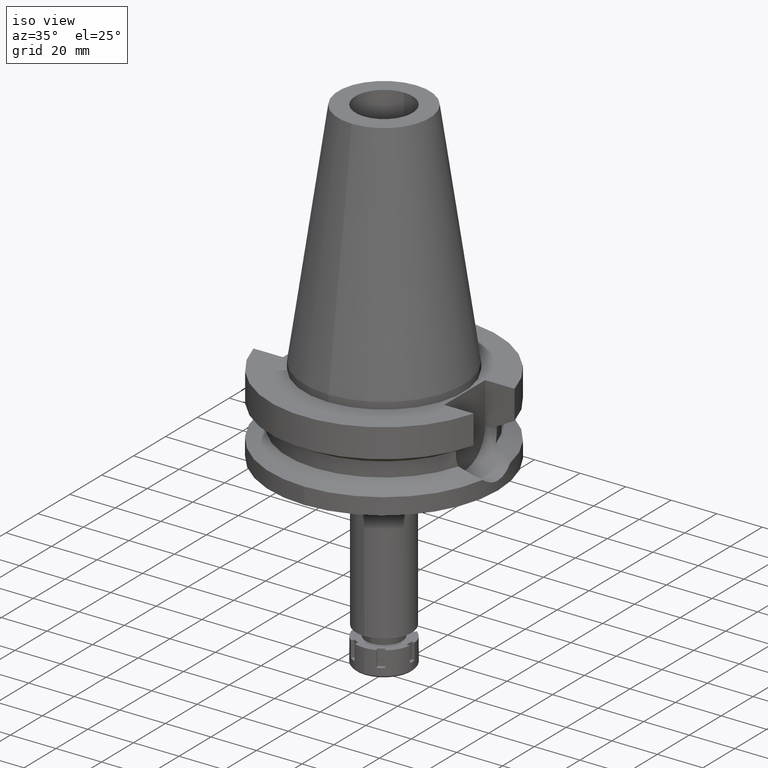
[diagram: clean part render]
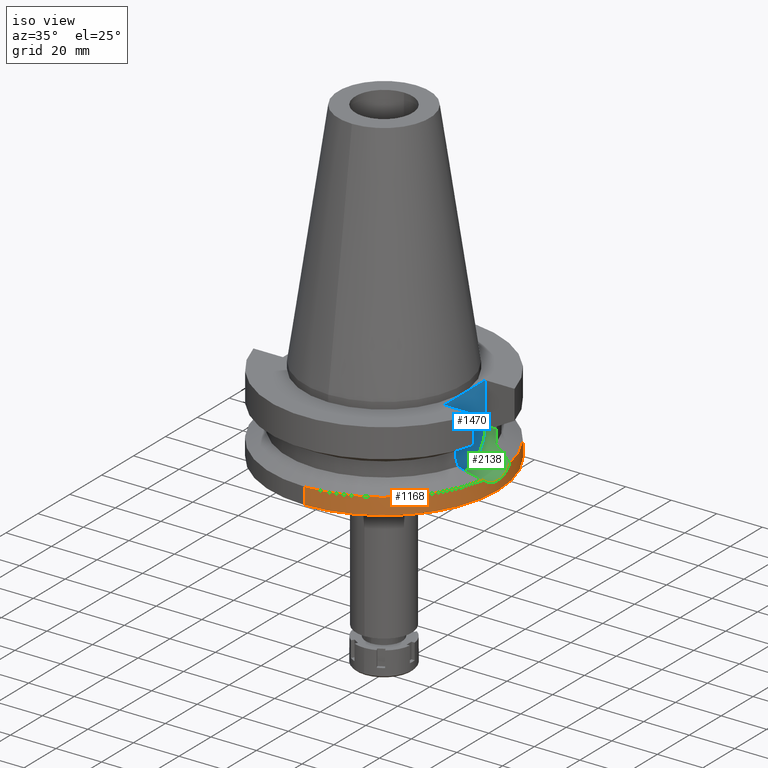
[diagram: same view with three faces highlighted in distinct colors, each labeled with its STEP entity id]
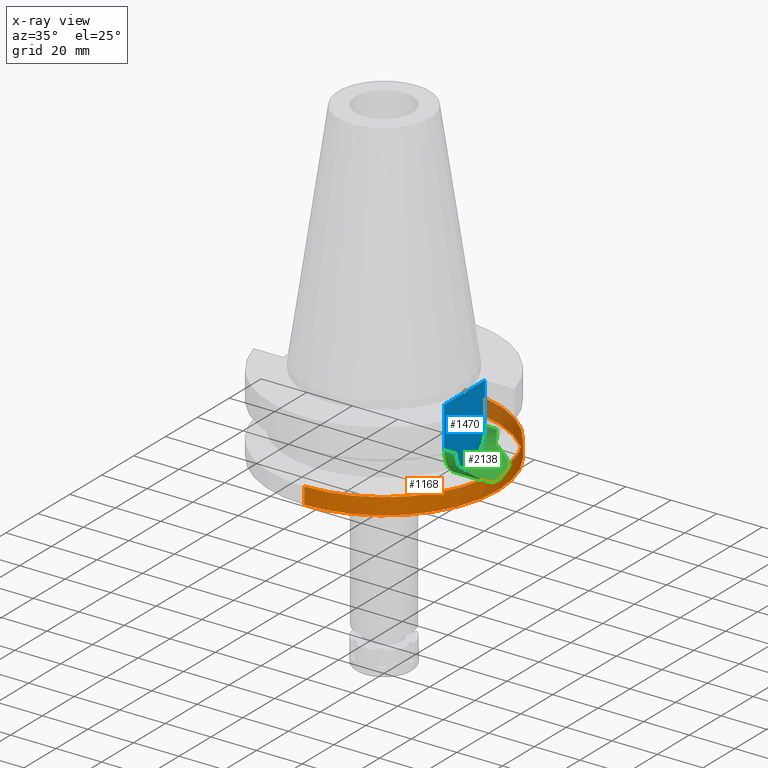
[diagram: x-ray of the same camera — body ghosted, the three highlighted faces saturated]
A machine part, iso view with three faces highlighted in distinct colors.
The next image is the same camera in x-ray (body ghosted, the three faces saturated) — at least one of them is partly hidden behind the body in this view.
Their STEP definitions:

[orange] entity #1168 — the highlighted cylindrical surface (partial cylindrical patch) has radius 50 mm, axis along (0, 0, -1).
#22 = CARTESIAN_POINT ( 'NONE',  ( 49.38718395762388980, -7.838173074800098838, -31.37796849364748297 ) ) ;
#64 = CARTESIAN_POINT ( 'NONE',  ( 50.00000000000000000, 1.760980864833999835E-14, -34.00000000000000000 ) ) ;
#94 = CARTESIAN_POINT ( 'NONE',  ( 49.38718097022546516, 7.838190275139792718, -31.37795314345651931 ) ) ;
#98 = CIRCLE ( 'NONE', #3022, 50.00000000000000000 ) ;
#148 = CARTESIAN_POINT ( 'NONE',  ( 49.26250064874000145, 8.556052234130000045, -30.73730776426999967 ) ) ;
#245 = CARTESIAN_POINT ( 'NONE',  ( 49.26250064874000145, 8.556052234130000045, -30.73730776426999967 ) ) ;
#254 = CARTESIAN_POINT ( 'NONE',  ( 49.86087221398776848, -3.802572501541650496, -33.45144442953220931 ) ) ;
#272 = CARTESIAN_POINT ( 'NONE',  ( 49.49359291808598016, -7.117121548719578250, -31.87762897416482488 ) ) ;
#306 = LINE ( 'NONE', #1432, #2736 ) ;
#323 = CARTESIAN_POINT ( 'NONE',  ( 50.00000000000000000, 1.760980864833999835E-14, -34.00000000000000000 ) ) ;
#368 = FACE_OUTER_BOUND ( 'NONE', #2803, .T. ) ;
#427 = DIRECTION ( 'NONE',  ( 0.0000000000000000000, 0.0000000000000000000, -1.000000000000000000 ) ) ;
#539 = CARTESIAN_POINT ( 'NONE',  ( 49.98260902674847017, -1.500717387586478324, -33.93573183430939366 ) ) ;
#590 = DIRECTION ( 'NONE',  ( 0.0000000000000000000, -2.054527022025999694E-14, -1.000000000000000000 ) ) ;
#666 = EDGE_CURVE ( 'NONE', #2632, #2950, #98, .T. ) ;
#686 = EDGE_CURVE ( 'NONE', #1694, #2950, #766, .T. ) ;
#702 = VERTEX_POINT ( 'NONE', #997 ) ;
#766 = B_SPLINE_CURVE_WITH_KNOTS ( 'NONE', 3,
 ( #3259, #3571, #3218, #1790, #2143, #2353, #917, #2738, #3499, #2717, #1544, #1195, #2090, #2070, #3535, #3237, #2701, #94, #148 ),
 .UNSPECIFIED., .F., .F.,
 ( 4, 2, 2, 1, 1, 1, 1, 1, 2, 2, 2, 4 ),
 ( 0.0000000000000000000, 0.2499999999998885336, 0.3749999999998328004, 0.4374999999998049893, 0.4687499999997914446, 0.4843749999997843392, 0.4921874999997810640, 0.4960937499997795097, 0.4980468749997793432, 0.4999999999997791766, 0.7499999999998895328, 1.000000000000000000 ),
 .UNSPECIFIED. ) ;
#802 = CARTESIAN_POINT ( 'NONE',  ( 49.79050117567902589, -4.572330526435194109, -33.15900978014663991 ) ) ;
#833 = CARTESIAN_POINT ( 'NONE',  ( 49.66529355506108345, -5.772644195309869275, -32.63560987276614611 ) ) ;
#835 = CIRCLE ( 'NONE', #1987, 50.00000000000000000 ) ;
#899 = LINE ( 'NONE', #2399, #3398 ) ;
#917 = CARTESIAN_POINT ( 'NONE',  ( 49.84835047889563242, 3.895932941102290936, -33.39806964274872314 ) ) ;
#940 = CARTESIAN_POINT ( 'NONE',  ( 0.0000000000000000000, 0.0000000000000000000, -30.73730776426999967 ) ) ;
#997 = CARTESIAN_POINT ( 'NONE',  ( 49.26250064874000145, -8.556052234130000045, -30.73730776426999967 ) ) ;
#1144 = CARTESIAN_POINT ( 'NONE',  ( 49.78560365035519197, -4.625461934387631757, -33.13867112590133246 ) ) ;
#1153 = ORIENTED_EDGE ( 'NONE', *, *, #2568, .F. ) ;
#1156 = AXIS2_PLACEMENT_3D ( 'NONE', #1676, #3430, #2828 ) ;
#1168 = ADVANCED_FACE ( 'NONE', ( #368 ), #2103, .T. ) ;
#1195 = CARTESIAN_POINT ( 'NONE',  ( 49.79344695708954305, 4.540054226081636557, -33.17124985380178259 ) ) ;
#1422 = CARTESIAN_POINT ( 'NONE',  ( 0.0000000000000000000, 50.00000000000000000, -38.00000000000000000 ) ) ;
#1432 = CARTESIAN_POINT ( 'NONE',  ( 0.0000000000000000000, -50.00000000000000000, -30.73730776426999967 ) ) ;
#1452 = CARTESIAN_POINT ( 'NONE',  ( 49.76774010465379661, -4.814101204127102740, -33.06459564812003293 ) ) ;
#1457 = EDGE_CURVE ( 'NONE', #702, #1694, #2195, .T. ) ;
#1459 = AXIS2_PLACEMENT_3D ( 'NONE', #2139, #2660, #2641 ) ;
#1523 = DIRECTION ( 'NONE',  ( 0.9852500129747439050, -0.1711210446826074982, 0.0000000000000000000 ) ) ;
#1543 = EDGE_CURVE ( 'NONE', #3503, #2437, #306, .T. ) ;
#1544 = CARTESIAN_POINT ( 'NONE',  ( 49.79506804257012220, 4.522212035686059117, -33.17798325147212068 ) ) ;
#1676 = CARTESIAN_POINT ( 'NONE',  ( 0.0000000000000000000, 2.603476630306999805E-14, -38.00000000000000000 ) ) ;
#1694 = VERTEX_POINT ( 'NONE', #64 ) ;
#1704 = CARTESIAN_POINT ( 'NONE',  ( 49.99999999999999289, -0.7411113154164213901, -33.99999999999999289 ) ) ;
#1721 = CARTESIAN_POINT ( 'NONE',  ( 49.78969068424321165, -4.581164178981958379, -33.15564271948159814 ) ) ;
#1752 = ORIENTED_EDGE ( 'NONE', *, *, #1927, .T. ) ;
#1790 = CARTESIAN_POINT ( 'NONE',  ( 49.93042602616002057, 2.648908124858972091, -33.73002211537372830 ) ) ;
#1792 = DIRECTION ( 'NONE',  ( 0.0000000000000000000, 2.152361642122000014E-14, -1.000000000000000000 ) ) ;
#1927 = EDGE_CURVE ( 'NONE', #2437, #2504, #3451, .T. ) ;
#1987 = AXIS2_PLACEMENT_3D ( 'NONE', #2007, #2933, #1523 ) ;
#2007 = CARTESIAN_POINT ( 'NONE',  ( 0.0000000000000000000, 0.0000000000000000000, -30.73730776426999967 ) ) ;
#2070 = CARTESIAN_POINT ( 'NONE',  ( 49.79168103802500411, 4.559431696502699083, -33.16391296943927358 ) ) ;
#2073 = CARTESIAN_POINT ( 'NONE',  ( 0.0000000000000000000, 50.00000000000000000, -30.73730776426999967 ) ) ;
#2090 = CARTESIAN_POINT ( 'NONE',  ( 49.79236411020667674, 4.551947763946651015, -33.16675130713756658 ) ) ;
#2103 = CYLINDRICAL_SURFACE ( 'NONE', #1459, 50.00000000000000000 ) ;
#2127 = DIRECTION ( 'NONE',  ( 0.0000000000000000000, 1.000000000000000000, 0.0000000000000000000 ) ) ;
#2139 = CARTESIAN_POINT ( 'NONE',  ( 0.0000000000000000000, 2.603476630306999805E-14, 112.5899999999999892 ) ) ;
#2143 = CARTESIAN_POINT ( 'NONE',  ( 49.90868415933501723, 3.033014601622761930, -33.64326496418591006 ) ) ;
#2195 = B_SPLINE_CURVE_WITH_KNOTS ( 'NONE', 3,
 ( #3379, #22, #272, #2849, #833, #2558, #3133, #3436, #1452, #2578, #1144, #2816, #1721, #802, #2539, #254, #2308, #539, #1704, #323 ),
 .UNSPECIFIED., .F., .F.,
 ( 4, 2, 2, 2, 1, 1, 1, 1, 2, 2, 2, 4 ),
 ( 0.0000000000000000000, 0.2499999999999755196, 0.3749999999999631961, 0.4374999999999569789, 0.4687499999999538702, 0.4843749999999522049, 0.4921874999999506506, 0.4960937499999500400, 0.4980468749999502065, 0.4999999999999504285, 0.7499999999999751310, 1.000000000000000000 ),
 .UNSPECIFIED. ) ;
#2229 = CARTESIAN_POINT ( 'NONE',  ( 0.0000000000000000000, -50.00000000000000000, -30.73730776426999967 ) ) ;
#2308 = CARTESIAN_POINT ( 'NONE',  ( 49.91304513374235086, -3.031454505170581015, -33.66148971143555713 ) ) ;
#2353 = CARTESIAN_POINT ( 'NONE',  ( 49.86954879904999416, 3.608421990787732181, -33.48456028791267869 ) ) ;
#2370 = ORIENTED_EDGE ( 'NONE', *, *, #3220, .T. ) ;
#2399 = CARTESIAN_POINT ( 'NONE',  ( 0.0000000000000000000, 50.00000000000000000, -30.73730776426999967 ) ) ;
#2437 = VERTEX_POINT ( 'NONE', #3392 ) ;
#2504 = VERTEX_POINT ( 'NONE', #1422 ) ;
#2510 = ORIENTED_EDGE ( 'NONE', *, *, #666, .T. ) ;
#2539 = CARTESIAN_POINT ( 'NONE',  ( 49.79076485306756439, -4.569454252984114895, -33.16010525646355944 ) ) ;
#2558 = CARTESIAN_POINT ( 'NONE',  ( 49.71768875277494004, -5.301942241106664788, -32.85649167174887708 ) ) ;
#2568 = EDGE_CURVE ( 'NONE', #2632, #2504, #899, .T. ) ;
#2578 = CARTESIAN_POINT ( 'NONE',  ( 49.77977405742505113, -4.687880468067301187, -33.11448302226990847 ) ) ;
#2626 = ORIENTED_EDGE ( 'NONE', *, *, #1457, .F. ) ;
#2632 = VERTEX_POINT ( 'NONE', #2073 ) ;
#2641 = DIRECTION ( 'NONE',  ( 0.0000000000000000000, -1.000000000000000000, 0.0000000000000000000 ) ) ;
#2660 = DIRECTION ( 'NONE',  ( 0.0000000000000000000, 0.0000000000000000000, -1.000000000000000000 ) ) ;
#2701 = CARTESIAN_POINT ( 'NONE',  ( 49.49358591677987818, 7.117173178882761242, -31.87759042716135838 ) ) ;
#2717 = CARTESIAN_POINT ( 'NONE',  ( 49.79882828145166229, 4.480567247210740511, -33.19359360191444352 ) ) ;
#2736 = VECTOR ( 'NONE', #590, 1000.000000000000000 ) ;
#2738 = CARTESIAN_POINT ( 'NONE',  ( 49.82076548536139882, 4.230355037827519205, -33.28443577066656900 ) ) ;
#2803 = EDGE_LOOP ( 'NONE', ( #2370, #3599, #1752, #1153, #2510, #3135, #2626 ) ) ;
#2816 = CARTESIAN_POINT ( 'NONE',  ( 49.78847160095637037, -4.594427207978478478, -33.15057897143839938 ) ) ;
#2828 = DIRECTION ( 'NONE',  ( 0.0000000000000000000, -1.000000000000000000, 0.0000000000000000000 ) ) ;
#2849 = CARTESIAN_POINT ( 'NONE',  ( 49.62579483614640452, -6.100868770329502588, -32.46614492147681119 ) ) ;
#2933 = DIRECTION ( 'NONE',  ( 0.0000000000000000000, 0.0000000000000000000, -1.000000000000000000 ) ) ;
#2950 = VERTEX_POINT ( 'NONE', #245 ) ;
#3022 = AXIS2_PLACEMENT_3D ( 'NONE', #940, #427, #2127 ) ;
#3133 = CARTESIAN_POINT ( 'NONE',  ( 49.73401167190318262, -5.148629038603101726, -32.92456578367322351 ) ) ;
#3135 = ORIENTED_EDGE ( 'NONE', *, *, #686, .F. ) ;
#3218 = CARTESIAN_POINT ( 'NONE',  ( 49.98260650654001580, 1.500770204055954959, -33.93572921282015642 ) ) ;
#3220 = EDGE_CURVE ( 'NONE', #702, #3503, #835, .T. ) ;
#3237 = CARTESIAN_POINT ( 'NONE',  ( 49.66984506002655309, 5.762278795881266902, -32.66223234258540487 ) ) ;
#3259 = CARTESIAN_POINT ( 'NONE',  ( 50.00000000000000000, 1.760980864833999835E-14, -34.00000000000000000 ) ) ;
#3379 = CARTESIAN_POINT ( 'NONE',  ( 49.26250064874000145, -8.556052234130000045, -30.73730776426999967 ) ) ;
#3392 = CARTESIAN_POINT ( 'NONE',  ( 0.0000000000000000000, -50.00000000000000000, -38.00000000000000000 ) ) ;
#3398 = VECTOR ( 'NONE', #1792, 1000.000000000000000 ) ;
#3430 = DIRECTION ( 'NONE',  ( 0.0000000000000000000, 0.0000000000000000000, 1.000000000000000000 ) ) ;
#3436 = CARTESIAN_POINT ( 'NONE',  ( 49.75678283043102113, -4.924618298008330619, -33.01917034639408399 ) ) ;
#3451 = CIRCLE ( 'NONE', #1156, 50.00000000000000000 ) ;
#3499 = CARTESIAN_POINT ( 'NONE',  ( 49.80625958358911021, 4.397227018164380219, -33.22441102721823825 ) ) ;
#3503 = VERTEX_POINT ( 'NONE', #2229 ) ;
#3535 = CARTESIAN_POINT ( 'NONE',  ( 49.73969925671880077, 5.128026725825210796, -32.94788525416111469 ) ) ;
#3571 = CARTESIAN_POINT ( 'NONE',  ( 50.00000000000000000, 0.7411266722812337449, -34.00000000000001421 ) ) ;
#3599 = ORIENTED_EDGE ( 'NONE', *, *, #1543, .T. ) ;

[blue] entity #1470 — the highlighted planar face has unit normal (1, 0, 0).
#20 = DIRECTION ( 'NONE',  ( 0.0000000000000000000, 1.000000000000000000, 0.0000000000000000000 ) ) ;
#78 = LINE ( 'NONE', #904, #2248 ) ;
#114 = LINE ( 'NONE', #1930, #3602 ) ;
#140 = DIRECTION ( 'NONE',  ( 0.0000000000000000000, 0.0000000000000000000, -1.000000000000000000 ) ) ;
#422 = LINE ( 'NONE', #2120, #986 ) ;
#433 = VERTEX_POINT ( 'NONE', #2011 ) ;
#525 = PLANE ( 'NONE',  #1222 ) ;
#557 = CARTESIAN_POINT ( 'NONE',  ( 35.39999999999999858, 0.0000000000000000000, 0.0000000000000000000 ) ) ;
#904 = CARTESIAN_POINT ( 'NONE',  ( 35.39999999999999858, 12.84999999999999964, -3.000000000000000000 ) ) ;
#953 = EDGE_LOOP ( 'NONE', ( #2518, #1069, #2580, #2680 ) ) ;
#978 = CARTESIAN_POINT ( 'NONE',  ( 35.39999999999999858, 0.0000000000000000000, -21.14999999999999858 ) ) ;
#986 = VECTOR ( 'NONE', #140, 1000.000000000000000 ) ;
#1069 = ORIENTED_EDGE ( 'NONE', *, *, #2731, .F. ) ;
#1203 = DIRECTION ( 'NONE',  ( 0.0000000000000000000, -1.000000000000000000, 0.0000000000000000000 ) ) ;
#1222 = AXIS2_PLACEMENT_3D ( 'NONE', #557, #1682, #20 ) ;
#1286 = CARTESIAN_POINT ( 'NONE',  ( 35.39999999999999858, -12.84999999999999964, -21.14999999999999858 ) ) ;
#1470 = ADVANCED_FACE ( 'NONE', ( #2271 ), #525, .T. ) ;
#1577 = DIRECTION ( 'NONE',  ( 0.0000000000000000000, 1.000000000000000000, 0.0000000000000000000 ) ) ;
#1639 = EDGE_CURVE ( 'NONE', #2108, #433, #422, .T. ) ;
#1682 = DIRECTION ( 'NONE',  ( 1.000000000000000000, 0.0000000000000000000, 0.0000000000000000000 ) ) ;
#1830 = DIRECTION ( 'NONE',  ( -1.000000000000000000, 0.0000000000000000000, 0.0000000000000000000 ) ) ;
#1865 = VERTEX_POINT ( 'NONE', #1286 ) ;
#1930 = CARTESIAN_POINT ( 'NONE',  ( 35.39999999999999858, -12.84999999999999964, -21.14999999999999858 ) ) ;
#2011 = CARTESIAN_POINT ( 'NONE',  ( 35.39999999999999858, 12.84999999999999964, -21.14999999999999858 ) ) ;
#2108 = VERTEX_POINT ( 'NONE', #3470 ) ;
#2119 = EDGE_CURVE ( 'NONE', #2108, #2430, #78, .T. ) ;
#2120 = CARTESIAN_POINT ( 'NONE',  ( 35.39999999999999858, 12.84999999999999964, -3.000000000000000000 ) ) ;
#2171 = CIRCLE ( 'NONE', #3433, 12.84999999999999964 ) ;
#2248 = VECTOR ( 'NONE', #1203, 1000.000000000000000 ) ;
#2271 = FACE_OUTER_BOUND ( 'NONE', #953, .T. ) ;
#2430 = VERTEX_POINT ( 'NONE', #2862 ) ;
#2518 = ORIENTED_EDGE ( 'NONE', *, *, #3476, .F. ) ;
#2580 = ORIENTED_EDGE ( 'NONE', *, *, #1639, .F. ) ;
#2680 = ORIENTED_EDGE ( 'NONE', *, *, #2119, .T. ) ;
#2731 = EDGE_CURVE ( 'NONE', #433, #1865, #2171, .T. ) ;
#2862 = CARTESIAN_POINT ( 'NONE',  ( 35.39999999999999858, -12.84999999999999964, -3.000000000000000000 ) ) ;
#3075 = DIRECTION ( 'NONE',  ( 0.0000000000000000000, 0.0000000000000000000, 1.000000000000000000 ) ) ;
#3433 = AXIS2_PLACEMENT_3D ( 'NONE', #978, #1830, #1577 ) ;
#3470 = CARTESIAN_POINT ( 'NONE',  ( 35.39999999999999858, 12.84999999999999964, -3.000000000000000000 ) ) ;
#3476 = EDGE_CURVE ( 'NONE', #1865, #2430, #114, .T. ) ;
#3602 = VECTOR ( 'NONE', #3075, 1000.000000000000000 ) ;

[green] entity #2138 — the highlighted cylindrical surface (edge-blend (fillet) strip) has radius 12.85 mm, axis along (1, 0, 0).
#17 = CARTESIAN_POINT ( 'NONE',  ( 40.59736410791902017, -12.57413583718784800, -23.79845734576946725 ) ) ;
#19 = ORIENTED_EDGE ( 'NONE', *, *, #1349, .T. ) ;
#22 = CARTESIAN_POINT ( 'NONE',  ( 49.38718395762388980, -7.838173074800098838, -31.37796849364748297 ) ) ;
#64 = CARTESIAN_POINT ( 'NONE',  ( 50.00000000000000000, 1.760980864833999835E-14, -34.00000000000000000 ) ) ;
#89 = VERTEX_POINT ( 'NONE', #1950 ) ;
#94 = CARTESIAN_POINT ( 'NONE',  ( 49.38718097022546516, 7.838190275139792718, -31.37795314345651931 ) ) ;
#148 = CARTESIAN_POINT ( 'NONE',  ( 49.26250064874000145, 8.556052234130000045, -30.73730776426999967 ) ) ;
#196 = CARTESIAN_POINT ( 'NONE',  ( 40.85052569294000335, 11.72538061688000077, -26.40718074535000426 ) ) ;
#245 = CARTESIAN_POINT ( 'NONE',  ( 49.26250064874000145, 8.556052234130000045, -30.73730776426999967 ) ) ;
#251 = CARTESIAN_POINT ( 'NONE',  ( 40.85052569294000335, -11.72538061688000077, -26.40718074535000426 ) ) ;
#254 = CARTESIAN_POINT ( 'NONE',  ( 49.86087221398776848, -3.802572501541650496, -33.45144442953220931 ) ) ;
#272 = CARTESIAN_POINT ( 'NONE',  ( 49.49359291808598016, -7.117121548719578250, -31.87762897416482488 ) ) ;
#282 = AXIS2_PLACEMENT_3D ( 'NONE', #3506, #2673, #420 ) ;
#304 = CARTESIAN_POINT ( 'NONE',  ( 40.57495769630776294, -12.64634707790186319, -23.43364513697129325 ) ) ;
#323 = CARTESIAN_POINT ( 'NONE',  ( 50.00000000000000000, 1.760980864833999835E-14, -34.00000000000000000 ) ) ;
#337 = ORIENTED_EDGE ( 'NONE', *, *, #686, .T. ) ;
#350 = CARTESIAN_POINT ( 'NONE',  ( 40.60613153987078050, 12.54580241307119692, -23.92958009225780458 ) ) ;
#420 = DIRECTION ( 'NONE',  ( 0.0000000000000000000, 0.0000000000000000000, -1.000000000000000000 ) ) ;
#433 = VERTEX_POINT ( 'NONE', #2011 ) ;
#539 = CARTESIAN_POINT ( 'NONE',  ( 49.98260902674847017, -1.500717387586478324, -33.93573183430939366 ) ) ;
#612 = CARTESIAN_POINT ( 'NONE',  ( 45.30652133557489236, 10.39316099073092659, -28.70676919610410849 ) ) ;
#615 = DIRECTION ( 'NONE',  ( -1.000000000000000000, -3.510427359434999885E-14, 0.0000000000000000000 ) ) ;
#686 = EDGE_CURVE ( 'NONE', #1694, #2950, #766, .T. ) ;
#702 = VERTEX_POINT ( 'NONE', #997 ) ;
#750 = CARTESIAN_POINT ( 'NONE',  ( 44.64953959984796228, -10.63119611162756328, -28.36891919546360441 ) ) ;
#766 = B_SPLINE_CURVE_WITH_KNOTS ( 'NONE', 3,
 ( #3259, #3571, #3218, #1790, #2143, #2353, #917, #2738, #3499, #2717, #1544, #1195, #2090, #2070, #3535, #3237, #2701, #94, #148 ),
 .UNSPECIFIED., .F., .F.,
 ( 4, 2, 2, 1, 1, 1, 1, 1, 2, 2, 2, 4 ),
 ( 0.0000000000000000000, 0.2499999999998885336, 0.3749999999998328004, 0.4374999999998049893, 0.4687499999997914446, 0.4843749999997843392, 0.4921874999997810640, 0.4960937499997795097, 0.4980468749997793432, 0.4999999999997791766, 0.7499999999998895328, 1.000000000000000000 ),
 .UNSPECIFIED. ) ;
#783 = CARTESIAN_POINT ( 'NONE',  ( 44.91714454457760297, -10.53677858372422271, -28.50663027097723656 ) ) ;
#802 = CARTESIAN_POINT ( 'NONE',  ( 49.79050117567902589, -4.572330526435194109, -33.15900978014663991 ) ) ;
#833 = CARTESIAN_POINT ( 'NONE',  ( 49.66529355506108345, -5.772644195309869275, -32.63560987276614611 ) ) ;
#913 = CARTESIAN_POINT ( 'NONE',  ( 40.62482419419735891, 12.48526689985687987, -24.19323376024561512 ) ) ;
#917 = CARTESIAN_POINT ( 'NONE',  ( 49.84835047889563242, 3.895932941102290936, -33.39806964274872314 ) ) ;
#974 = CARTESIAN_POINT ( 'NONE',  ( 40.85052569294000335, 11.72538061688000077, -26.40718074535000426 ) ) ;
#978 = CARTESIAN_POINT ( 'NONE',  ( 35.39999999999999858, 0.0000000000000000000, -21.14999999999999858 ) ) ;
#995 = CARTESIAN_POINT ( 'NONE',  ( 40.61156370412643213, 12.52823179351201333, -24.00849701668938252 ) ) ;
#997 = CARTESIAN_POINT ( 'NONE',  ( 49.26250064874000145, -8.556052234130000045, -30.73730776426999967 ) ) ;
#1023 = CARTESIAN_POINT ( 'NONE',  ( 42.56139704185976314, -11.29641514581150119, -27.29255670289762747 ) ) ;
#1057 = CARTESIAN_POINT ( 'NONE',  ( 41.73174727440247267, -11.52073590496281064, -26.86361115067537852 ) ) ;
#1085 = LINE ( 'NONE', #2033, #1517 ) ;
#1111 = EDGE_CURVE ( 'NONE', #3483, #1865, #3115, .T. ) ;
#1120 = CARTESIAN_POINT ( 'NONE',  ( 40.54944527668359200, -12.72806992640919255, -22.93044913861063705 ) ) ;
#1144 = CARTESIAN_POINT ( 'NONE',  ( 49.78560365035519197, -4.625461934387631757, -33.13867112590133246 ) ) ;
#1173 = CARTESIAN_POINT ( 'NONE',  ( 40.51083188481999997, -12.84999999999999964, -21.14999999999999858 ) ) ;
#1195 = CARTESIAN_POINT ( 'NONE',  ( 49.79344695708954305, 4.540054226081636557, -33.17124985380178259 ) ) ;
#1230 = CARTESIAN_POINT ( 'NONE',  ( 45.33005479228380352, 10.38434752395882477, -28.71887591152669117 ) ) ;
#1247 = B_SPLINE_CURVE_WITH_KNOTS ( 'NONE', 3,
 ( #2751, #1057, #1023, #1646, #3078, #750, #783, #2453, #1855, #2782, #3045, #1876, #1934, #3362, #1604 ),
 .UNSPECIFIED., .F., .F.,
 ( 4, 2, 2, 1, 1, 1, 2, 2, 4 ),
 ( 0.0000000000000000000, 0.2500000000000319744, 0.3750000000000487388, 0.4375000000000574540, 0.4687500000000615619, 0.4843750000000626166, 0.4921875000000625056, 0.5000000000000623945, 1.000000000000000000 ),
 .UNSPECIFIED. ) ;
#1248 = CARTESIAN_POINT ( 'NONE',  ( 45.61055175779686266, 10.27792937427570230, -28.86316374409679852 ) ) ;
#1286 = CARTESIAN_POINT ( 'NONE',  ( 35.39999999999999858, -12.84999999999999964, -21.14999999999999858 ) ) ;
#1290 = EDGE_CURVE ( 'NONE', #2352, #2225, #1419, .T. ) ;
#1323 = ORIENTED_EDGE ( 'NONE', *, *, #2731, .T. ) ;
#1349 = EDGE_CURVE ( 'NONE', #89, #702, #1247, .T. ) ;
#1393 = CARTESIAN_POINT ( 'NONE',  ( 40.54025161195416871, -12.75732247067935354, -22.70680363674587809 ) ) ;
#1419 = B_SPLINE_CURVE_WITH_KNOTS ( 'NONE', 3,
 ( #974, #2347, #2992, #2124, #3275, #2431, #913, #995, #350, #2063, #1501, #3637, #3601, #3348 ),
 .UNSPECIFIED., .F., .F.,
 ( 4, 2, 2, 1, 1, 2, 2, 4 ),
 ( 0.0000000000000000000, 0.2500000000000064948, 0.3750000000000086042, 0.4375000000000106581, 0.4687500000000109357, 0.4843750000000112688, 0.5000000000000115463, 1.000000000000000000 ),
 .UNSPECIFIED. ) ;
#1452 = CARTESIAN_POINT ( 'NONE',  ( 49.76774010465379661, -4.814101204127102740, -33.06459564812003293 ) ) ;
#1457 = EDGE_CURVE ( 'NONE', #702, #1694, #2195, .T. ) ;
#1472 = CARTESIAN_POINT ( 'NONE',  ( 40.51083188481999997, 12.84999999999999964, -21.14999999999999858 ) ) ;
#1501 = CARTESIAN_POINT ( 'NONE',  ( 40.60092238249551144, 12.56264134812070843, -23.85247231211191021 ) ) ;
#1517 = VECTOR ( 'NONE', #2247, 1000.000000000000000 ) ;
#1537 = CARTESIAN_POINT ( 'NONE',  ( 46.20326510714228618, 10.04235967096315640, -29.16793592149574366 ) ) ;
#1544 = CARTESIAN_POINT ( 'NONE',  ( 49.79506804257012220, 4.522212035686059117, -33.17798325147212068 ) ) ;
#1552 = CARTESIAN_POINT ( 'NONE',  ( 43.99278508770312612, 10.88337951508400359, -28.03090563789731249 ) ) ;
#1577 = DIRECTION ( 'NONE',  ( 0.0000000000000000000, 1.000000000000000000, 0.0000000000000000000 ) ) ;
#1579 = EDGE_CURVE ( 'NONE', #2950, #2352, #2020, .T. ) ;
#1604 = CARTESIAN_POINT ( 'NONE',  ( 49.26250064874000145, -8.556052234130000045, -30.73730776426999967 ) ) ;
#1642 = CARTESIAN_POINT ( 'NONE',  ( 40.51083188481999997, -12.84999999999999964, -21.14999999999999858 ) ) ;
#1646 = CARTESIAN_POINT ( 'NONE',  ( 43.72851397203797319, -10.94016610435098258, -27.89460081160610372 ) ) ;
#1694 = VERTEX_POINT ( 'NONE', #64 ) ;
#1704 = CARTESIAN_POINT ( 'NONE',  ( 49.99999999999999289, -0.7411113154164213901, -33.99999999999999289 ) ) ;
#1721 = CARTESIAN_POINT ( 'NONE',  ( 49.78969068424321165, -4.581164178981958379, -33.15564271948159814 ) ) ;
#1790 = CARTESIAN_POINT ( 'NONE',  ( 49.93042602616002057, 2.648908124858972091, -33.73002211537372830 ) ) ;
#1807 = ORIENTED_EDGE ( 'NONE', *, *, #1111, .F. ) ;
#1830 = DIRECTION ( 'NONE',  ( -1.000000000000000000, 0.0000000000000000000, 0.0000000000000000000 ) ) ;
#1838 = CARTESIAN_POINT ( 'NONE',  ( 42.51530882990908111, 11.33877062838423733, -27.26945835857795686 ) ) ;
#1855 = CARTESIAN_POINT ( 'NONE',  ( 45.37064644656781098, -10.36904724933723365, -28.73990445505618041 ) ) ;
#1865 = VERTEX_POINT ( 'NONE', #1286 ) ;
#1876 = CARTESIAN_POINT ( 'NONE',  ( 45.49693590932135834, -10.32113672805377469, -28.80485704954208970 ) ) ;
#1934 = CARTESIAN_POINT ( 'NONE',  ( 46.93067369086496399, -9.772989782773381151, -29.54223359439000873 ) ) ;
#1950 = CARTESIAN_POINT ( 'NONE',  ( 40.85052569294000335, -11.72538061688000077, -26.40718074535000426 ) ) ;
#1965 = CARTESIAN_POINT ( 'NONE',  ( 49.26250064874000145, 8.556052234130000045, -30.73730776426999967 ) ) ;
#2011 = CARTESIAN_POINT ( 'NONE',  ( 35.39999999999999858, 12.84999999999999964, -21.14999999999999858 ) ) ;
#2016 = CARTESIAN_POINT ( 'NONE',  ( 40.59544233053302520, -12.58034074061086294, -23.76884316745783465 ) ) ;
#2020 = B_SPLINE_CURVE_WITH_KNOTS ( 'NONE', 3,
 ( #1965, #3415, #2884, #2059, #3510, #1537, #3184, #1248, #3208, #2366, #1230, #612, #2967, #1552, #1838, #2927 ),
 .UNSPECIFIED., .F., .F.,
 ( 4, 2, 2, 1, 1, 1, 1, 2, 2, 4 ),
 ( 0.0000000000000000000, 0.2499999999999689138, 0.3749999999999535927, 0.4374999999999459321, 0.4687499999999423239, 0.4843749999999406031, 0.4921874999999403255, 0.4960937499999401590, 0.4999999999999399369, 1.000000000000000000 ),
 .UNSPECIFIED. ) ;
#2033 = CARTESIAN_POINT ( 'NONE',  ( 35.39999999999999858, 12.84999999999999964, -21.14999999999999858 ) ) ;
#2059 = CARTESIAN_POINT ( 'NONE',  ( 47.07795648822085610, 9.668481140851216793, -29.61733800697612651 ) ) ;
#2063 = CARTESIAN_POINT ( 'NONE',  ( 40.60256585323760703, 12.55733039765435954, -23.87702712880619060 ) ) ;
#2070 = CARTESIAN_POINT ( 'NONE',  ( 49.79168103802500411, 4.559431696502699083, -33.16391296943927358 ) ) ;
#2090 = CARTESIAN_POINT ( 'NONE',  ( 49.79236411020667674, 4.551947763946651015, -33.16675130713756658 ) ) ;
#2124 = CARTESIAN_POINT ( 'NONE',  ( 40.68244087361946271, 12.29668167669231060, -24.88705339705516195 ) ) ;
#2138 = ADVANCED_FACE ( 'NONE', ( #2362 ), #2965, .F. ) ;
#2143 = CARTESIAN_POINT ( 'NONE',  ( 49.90868415933501723, 3.033014601622761930, -33.64326496418591006 ) ) ;
#2171 = CIRCLE ( 'NONE', #3433, 12.84999999999999964 ) ;
#2195 = B_SPLINE_CURVE_WITH_KNOTS ( 'NONE', 3,
 ( #3379, #22, #272, #2849, #833, #2558, #3133, #3436, #1452, #2578, #1144, #2816, #1721, #802, #2539, #254, #2308, #539, #1704, #323 ),
 .UNSPECIFIED., .F., .F.,
 ( 4, 2, 2, 2, 1, 1, 1, 1, 2, 2, 2, 4 ),
 ( 0.0000000000000000000, 0.2499999999999755196, 0.3749999999999631961, 0.4374999999999569789, 0.4687499999999538702, 0.4843749999999522049, 0.4921874999999506506, 0.4960937499999500400, 0.4980468749999502065, 0.4999999999999504285, 0.7499999999999751310, 1.000000000000000000 ),
 .UNSPECIFIED. ) ;
#2207 = ORIENTED_EDGE ( 'NONE', *, *, #1457, .T. ) ;
#2225 = VERTEX_POINT ( 'NONE', #1472 ) ;
#2247 = DIRECTION ( 'NONE',  ( 1.000000000000000000, -3.336643826789999529E-14, 0.0000000000000000000 ) ) ;
#2308 = CARTESIAN_POINT ( 'NONE',  ( 49.91304513374235086, -3.031454505170581015, -33.66148971143555713 ) ) ;
#2346 = EDGE_LOOP ( 'NONE', ( #2781, #2402, #3646, #1323, #1807, #3417, #19, #2207, #337 ) ) ;
#2347 = CARTESIAN_POINT ( 'NONE',  ( 40.79434512273290636, 11.92111036772190680, -25.97063387016590852 ) ) ;
#2352 = VERTEX_POINT ( 'NONE', #196 ) ;
#2353 = CARTESIAN_POINT ( 'NONE',  ( 49.86954879904999416, 3.608421990787732181, -33.48456028791267869 ) ) ;
#2362 = FACE_OUTER_BOUND ( 'NONE', #2346, .T. ) ;
#2366 = CARTESIAN_POINT ( 'NONE',  ( 45.36532156480345890, 10.37111571179136149, -28.73701857758462097 ) ) ;
#2402 = ORIENTED_EDGE ( 'NONE', *, *, #1290, .T. ) ;
#2431 = CARTESIAN_POINT ( 'NONE',  ( 40.63719394021434539, 12.44501252811690506, -24.35255093168898455 ) ) ;
#2453 = CARTESIAN_POINT ( 'NONE',  ( 45.22088931269361467, -10.42517961677263472, -28.66287819125837188 ) ) ;
#2533 = CARTESIAN_POINT ( 'NONE',  ( 40.65435373193400181, -12.39003581045331792, -24.66356197803972350 ) ) ;
#2539 = CARTESIAN_POINT ( 'NONE',  ( 49.79076485306756439, -4.569454252984114895, -33.16010525646355944 ) ) ;
#2554 = CARTESIAN_POINT ( 'NONE',  ( 40.59187978545035236, -12.59183662339848375, -23.71299885588245715 ) ) ;
#2558 = CARTESIAN_POINT ( 'NONE',  ( 49.71768875277494004, -5.301942241106664788, -32.85649167174887708 ) ) ;
#2575 = CARTESIAN_POINT ( 'NONE',  ( 40.58662215843323651, -12.60879279856068003, -23.62921822474166689 ) ) ;
#2578 = CARTESIAN_POINT ( 'NONE',  ( 49.77977405742505113, -4.687880468067301187, -33.11448302226990847 ) ) ;
#2673 = DIRECTION ( 'NONE',  ( 1.000000000000000000, 0.0000000000000000000, 0.0000000000000000000 ) ) ;
#2678 = VECTOR ( 'NONE', #615, 1000.000000000000000 ) ;
#2701 = CARTESIAN_POINT ( 'NONE',  ( 49.49358591677987818, 7.117173178882761242, -31.87759042716135838 ) ) ;
#2717 = CARTESIAN_POINT ( 'NONE',  ( 49.79882828145166229, 4.480567247210740511, -33.19359360191444352 ) ) ;
#2731 = EDGE_CURVE ( 'NONE', #433, #1865, #2171, .T. ) ;
#2738 = CARTESIAN_POINT ( 'NONE',  ( 49.82076548536139882, 4.230355037827519205, -33.28443577066656900 ) ) ;
#2751 = CARTESIAN_POINT ( 'NONE',  ( 40.85052569294000335, -11.72538061688000077, -26.40718074535000426 ) ) ;
#2781 = ORIENTED_EDGE ( 'NONE', *, *, #1579, .T. ) ;
#2782 = CARTESIAN_POINT ( 'NONE',  ( 45.43437480747449797, -10.34492221121429445, -28.77268115770582924 ) ) ;
#2816 = CARTESIAN_POINT ( 'NONE',  ( 49.78847160095637037, -4.594427207978478478, -33.15057897143839938 ) ) ;
#2849 = CARTESIAN_POINT ( 'NONE',  ( 49.62579483614640452, -6.100868770329502588, -32.46614492147681119 ) ) ;
#2881 = CARTESIAN_POINT ( 'NONE',  ( 40.51083188481999997, -12.85000000000000142, -21.59153118651267889 ) ) ;
#2884 = CARTESIAN_POINT ( 'NONE',  ( 48.07284303382531476, 9.204936898330471351, -30.12791727959589849 ) ) ;
#2927 = CARTESIAN_POINT ( 'NONE',  ( 40.85052569294000335, 11.72538061688000077, -26.40718074535000426 ) ) ;
#2950 = VERTEX_POINT ( 'NONE', #245 ) ;
#2965 = CYLINDRICAL_SURFACE ( 'NONE', #282, 12.85000000000000320 ) ;
#2967 = CARTESIAN_POINT ( 'NONE',  ( 45.29303391459264816, 10.39820176066719526, -28.69983053976245913 ) ) ;
#2992 = CARTESIAN_POINT ( 'NONE',  ( 40.74530134662688852, 12.08735857076667308, -25.53452462452674254 ) ) ;
#3045 = CARTESIAN_POINT ( 'NONE',  ( 45.47675965521307262, -10.32882400617862473, -28.79448024639388848 ) ) ;
#3078 = CARTESIAN_POINT ( 'NONE',  ( 44.10465999526274317, -10.81811186677017211, -28.08840443445886947 ) ) ;
#3115 = LINE ( 'NONE', #1173, #2678 ) ;
#3133 = CARTESIAN_POINT ( 'NONE',  ( 49.73401167190318262, -5.148629038603101726, -32.92456578367322351 ) ) ;
#3145 = CARTESIAN_POINT ( 'NONE',  ( 40.51083188481999997, -12.84999999999999964, -21.14999999999999858 ) ) ;
#3181 = CARTESIAN_POINT ( 'NONE',  ( 40.73816527417317701, -12.11683760438691948, -25.53409260248793800 ) ) ;
#3184 = CARTESIAN_POINT ( 'NONE',  ( 45.93315944273734175, 10.15220621711150528, -29.02907861109629550 ) ) ;
#3208 = CARTESIAN_POINT ( 'NONE',  ( 45.44737681287631403, 10.34016055538381273, -28.77922957813407479 ) ) ;
#3218 = CARTESIAN_POINT ( 'NONE',  ( 49.98260650654001580, 1.500770204055954959, -33.93572921282015642 ) ) ;
#3237 = CARTESIAN_POINT ( 'NONE',  ( 49.66984506002655309, 5.762278795881266902, -32.66223234258540487 ) ) ;
#3259 = CARTESIAN_POINT ( 'NONE',  ( 50.00000000000000000, 1.760980864833999835E-14, -34.00000000000000000 ) ) ;
#3275 = CARTESIAN_POINT ( 'NONE',  ( 40.66327158114225426, 12.35978760559578582, -24.67233268229389864 ) ) ;
#3348 = CARTESIAN_POINT ( 'NONE',  ( 40.51083188481999997, 12.84999999999999964, -21.14999999999999858 ) ) ;
#3362 = CARTESIAN_POINT ( 'NONE',  ( 48.17850943589404267, -9.178117880302933074, -30.18215439978269643 ) ) ;
#3379 = CARTESIAN_POINT ( 'NONE',  ( 49.26250064874000145, -8.556052234130000045, -30.73730776426999967 ) ) ;
#3415 = CARTESIAN_POINT ( 'NONE',  ( 48.69048147115341152, 8.884314562374145297, -30.44435486278730707 ) ) ;
#3417 = ORIENTED_EDGE ( 'NONE', *, *, #3550, .T. ) ;
#3433 = AXIS2_PLACEMENT_3D ( 'NONE', #978, #1830, #1577 ) ;
#3436 = CARTESIAN_POINT ( 'NONE',  ( 49.75678283043102113, -4.924618298008330619, -33.01917034639408399 ) ) ;
#3450 = CARTESIAN_POINT ( 'NONE',  ( 40.56599387319658234, -12.67510252611517352, -23.26591392763370081 ) ) ;
#3483 = VERTEX_POINT ( 'NONE', #1642 ) ;
#3499 = CARTESIAN_POINT ( 'NONE',  ( 49.80625958358911021, 4.397227018164380219, -33.22441102721823825 ) ) ;
#3506 = CARTESIAN_POINT ( 'NONE',  ( 35.39999999999999858, 0.0000000000000000000, -21.14999999999999858 ) ) ;
#3510 = CARTESIAN_POINT ( 'NONE',  ( 46.73492282475065451, 9.820091680334314788, -29.44116615432499984 ) ) ;
#3535 = CARTESIAN_POINT ( 'NONE',  ( 49.73969925671880077, 5.128026725825210796, -32.94788525416111469 ) ) ;
#3550 = EDGE_CURVE ( 'NONE', #3483, #89, #3576, .T. ) ;
#3571 = CARTESIAN_POINT ( 'NONE',  ( 50.00000000000000000, 0.7411266722812337449, -34.00000000000001421 ) ) ;
#3576 = B_SPLINE_CURVE_WITH_KNOTS ( 'NONE', 3,
 ( #3145, #2881, #3682, #1393, #1120, #3450, #304, #2575, #2554, #2016, #17, #2533, #3181, #251 ),
 .UNSPECIFIED., .F., .F.,
 ( 4, 2, 2, 1, 1, 2, 2, 4 ),
 ( 0.0000000000000000000, 0.2500000000000049960, 0.3750000000000074940, 0.4375000000000087708, 0.4687500000000102141, 0.4843750000000111022, 0.5000000000000121014, 1.000000000000000000 ),
 .UNSPECIFIED. ) ;
#3601 = CARTESIAN_POINT ( 'NONE',  ( 40.51083188481998576, 12.84999999999999609, -22.03305700391314659 ) ) ;
#3613 = EDGE_CURVE ( 'NONE', #433, #2225, #1085, .T. ) ;
#3637 = CARTESIAN_POINT ( 'NONE',  ( 40.54024919018342388, 12.75863389446108975, -22.93144383368384709 ) ) ;
#3646 = ORIENTED_EDGE ( 'NONE', *, *, #3613, .F. ) ;
#3682 = CARTESIAN_POINT ( 'NONE',  ( 40.51818681660353860, -12.82722334132538577, -22.03684727484449368 ) ) ;